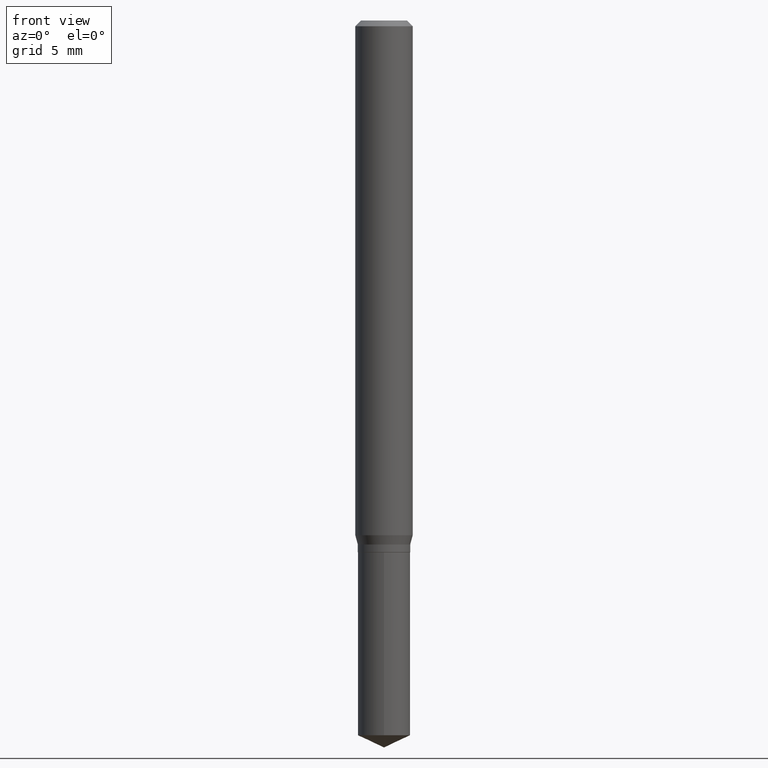
[diagram: clean part render]
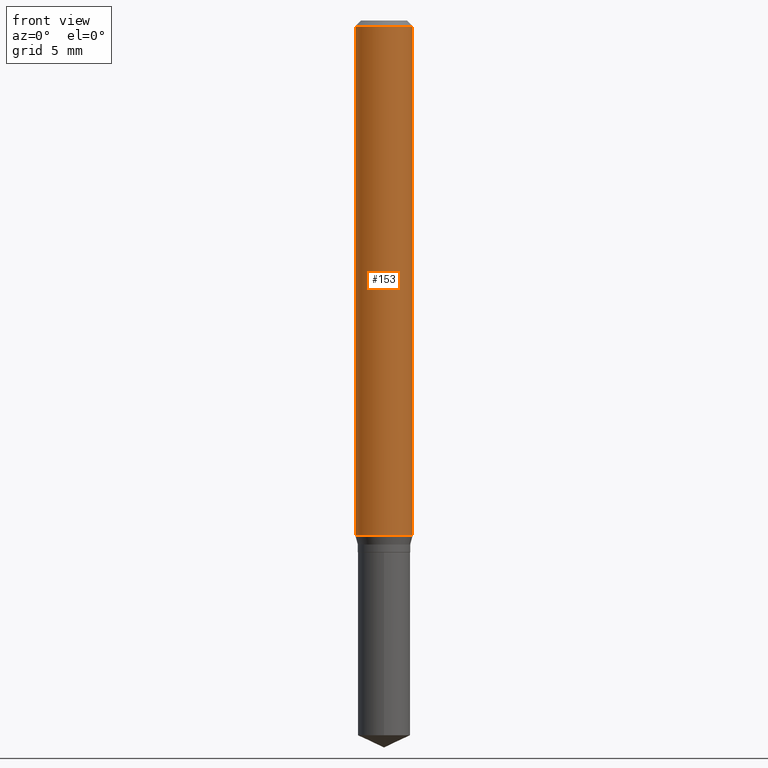
[diagram: same view with one face highlighted and labeled with its STEP entity id]
A machine part, front view. The second image highlights one B-rep face of the part: STEP entity #153.
In plain terms, the highlighted cylindrical surface (edge-blend (fillet) strip) has radius 1.4999 mm, axis along (-0, 0, 1).
Its self-contained STEP definition (entity closure, byte-faithful):
#48 = EDGE_CURVE ( 'NONE', #347, #101, #382, .T. ) ;
#62 = DIRECTION ( 'NONE',  ( -2.445468806185136877E-29, 3.491481338843145188E-15, 1.000000000000000000 ) ) ;
#88 = DIRECTION ( 'NONE',  ( -2.445468806185136597E-29, 3.491481338843145583E-15, 1.000000000000000000 ) ) ;
#89 = AXIS2_PLACEMENT_3D ( 'NONE', #424, #88, #198 ) ;
#101 = VERTEX_POINT ( 'NONE', #490 ) ;
#111 = CARTESIAN_POINT ( 'NONE',  ( 0.05905000000000006771, -4.123439461173745257E-16, 2.879382386107503723E-30 ) ) ;
#127 = AXIS2_PLACEMENT_3D ( 'NONE', #407, #369, #480 ) ;
#132 = ORIENTED_EDGE ( 'NONE', *, *, #441, .T. ) ;
#133 = CARTESIAN_POINT ( 'NONE',  ( 0.05905000000000013016, -4.110753306465706902E-15, -1.059266540881398155 ) ) ;
#143 = VERTEX_POINT ( 'NONE', #162 ) ;
#148 = EDGE_LOOP ( 'NONE', ( #269, #254, #132, #449 ) ) ;
#153 = ADVANCED_FACE ( 'NONE', ( #282 ), #203, .T. ) ;
#162 = CARTESIAN_POINT ( 'NONE',  ( 0.05904999999999999832, -4.535783407291118600E-16, -0.01181000000000007218 ) ) ;
#198 = DIRECTION ( 'NONE',  ( 1.000000000000000000, -6.982962677686266711E-15, 4.876176775795936353E-29 ) ) ;
#203 = CYLINDRICAL_SURFACE ( 'NONE', #89, 0.05905000000000006771 ) ;
#221 = AXIS2_PLACEMENT_3D ( 'NONE', #477, #289, #245 ) ;
#245 = DIRECTION ( 'NONE',  ( 1.000000000000000000, -6.982962677686265133E-15, 0.000000000000000000 ) ) ;
#246 = VECTOR ( 'NONE', #419, 39.37007874015748143 ) ;
#254 = ORIENTED_EDGE ( 'NONE', *, *, #380, .T. ) ;
#269 = ORIENTED_EDGE ( 'NONE', *, *, #48, .F. ) ;
#282 = FACE_OUTER_BOUND ( 'NONE', #148, .T. ) ;
#289 = DIRECTION ( 'NONE',  ( -2.445468806185136597E-29, 3.491481338843145583E-15, 1.000000000000000000 ) ) ;
#290 = VECTOR ( 'NONE', #62, 39.37007874015748143 ) ;
#307 = CIRCLE ( 'NONE', #221, 0.05905000000000013016 ) ;
#342 = LINE ( 'NONE', #111, #290 ) ;
#347 = VERTEX_POINT ( 'NONE', #445 ) ;
#358 = EDGE_CURVE ( 'NONE', #101, #143, #440, .T. ) ;
#369 = DIRECTION ( 'NONE',  ( -2.445468806185136597E-29, 3.491481338843145583E-15, 1.000000000000000000 ) ) ;
#380 = EDGE_CURVE ( 'NONE', #347, #453, #307, .T. ) ;
#382 = LINE ( 'NONE', #455, #246 ) ;
#407 = CARTESIAN_POINT ( 'NONE',  ( 2.888098660104664204E-31, -4.123439461173780263E-17, -0.01181000000000007218 ) ) ;
#419 = DIRECTION ( 'NONE',  ( -2.445468806185136877E-29, 3.491481338843145188E-15, 1.000000000000000000 ) ) ;
#424 = CARTESIAN_POINT ( 'NONE',  ( 0.000000000000000000, 0.000000000000000000, 0.000000000000000000 ) ) ;
#440 = CIRCLE ( 'NONE', #127, 0.05904999999999999832 ) ;
#441 = EDGE_CURVE ( 'NONE', #453, #143, #342, .T. ) ;
#445 = CARTESIAN_POINT ( 'NONE',  ( -0.05905000000000013016, -3.278833874881992094E-15, -1.059266540881398155 ) ) ;
#449 = ORIENTED_EDGE ( 'NONE', *, *, #358, .F. ) ;
#453 = VERTEX_POINT ( 'NONE', #133 ) ;
#455 = CARTESIAN_POINT ( 'NONE',  ( -0.05905000000000006771, 4.195754854663396409E-16, -2.904631170795525045E-30 ) ) ;
#477 = CARTESIAN_POINT ( 'NONE',  ( 2.590403283161092130E-29, -3.698409360348331981E-15, -1.059266540881398155 ) ) ;
#480 = DIRECTION ( 'NONE',  ( 1.000000000000000000, -6.982962677686266711E-15, 0.000000000000000000 ) ) ;
#490 = CARTESIAN_POINT ( 'NONE',  ( -0.05904999999999999832, -1.450246392013694376E-15, -0.01181000000000007218 ) ) ;